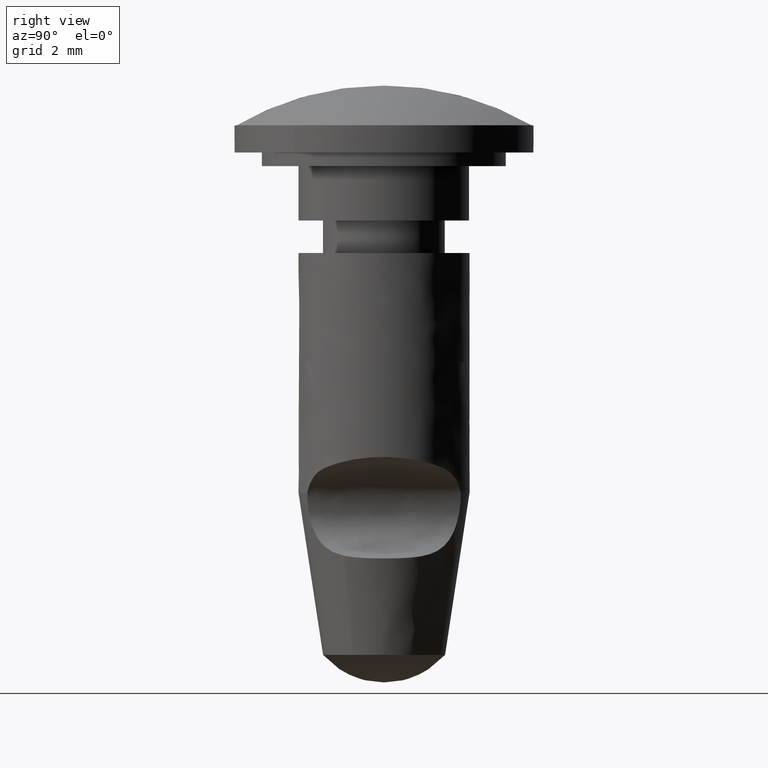
[diagram: clean part render]
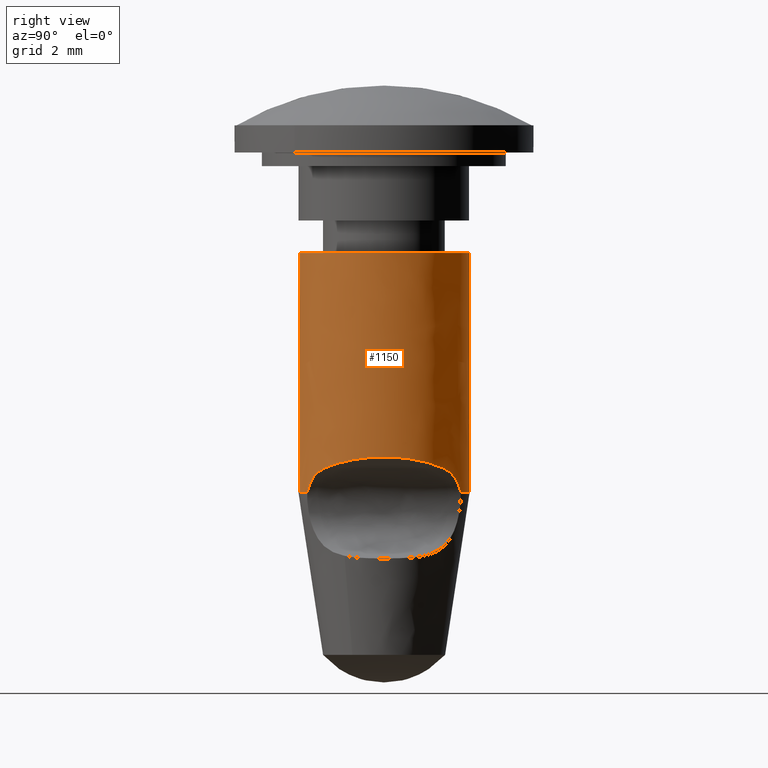
[diagram: same view with one face highlighted and labeled with its STEP entity id]
A machine part, right view. The second image highlights one B-rep face of the part: STEP entity #1150.
In plain terms, the highlighted face is a freeform B-spline surface patch.
Its self-contained STEP definition (entity closure, byte-faithful):
#107=CARTESIAN_POINT('',(1.395411921601278,-2.824061891859485,7.0));
#108=VERTEX_POINT('',#107);
#144=CARTESIAN_POINT('',(0.519899958460847,-3.106799644842327,7.000000000000001));
#145=VERTEX_POINT('',#144);
#146=CARTESIAN_POINT('',(1.395411921601283,-2.824061891859492,7.0));
#147=CARTESIAN_POINT('',(0.978524770270523,-3.030052172244709,7.000000000000001));
#148=CARTESIAN_POINT('',(0.519899958460847,-3.106799644842327,7.000000000000001));
#156=(BOUNDED_CURVE()B_SPLINE_CURVE(2,(#146,#147,#148),.UNSPECIFIED.,.F.,.U.)B_SPLINE_CURVE_WITH_KNOTS((3,3),(0.0,0.322129130754565),.UNSPECIFIED.)CURVE()GEOMETRIC_REPRESENTATION_ITEM()RATIONAL_B_SPLINE_CURVE((1.0,0.966668520807908,0.954811122453641))REPRESENTATION_ITEM(''));
#157=EDGE_CURVE('',#108,#145,#156,.T.);
#282=CARTESIAN_POINT('',(-1.395411921601278,2.824061891859485,7.0));
#283=VERTEX_POINT('',#282);
#317=CARTESIAN_POINT('',(1.395411921601278,2.824061891859485,7.0));
#318=VERTEX_POINT('',#317);
#319=CARTESIAN_POINT('',(-1.395411921601282,2.824061891859493,7.0));
#320=CARTESIAN_POINT('',(2.168404E-016,3.513556140041452,7.000000000000001));
#321=CARTESIAN_POINT('',(1.395411921601282,2.824061891859493,7.0));
#329=(BOUNDED_CURVE()B_SPLINE_CURVE(2,(#319,#320,#321),.UNSPECIFIED.,.F.,.U.)CURVE()GEOMETRIC_REPRESENTATION_ITEM()QUASI_UNIFORM_CURVE()RATIONAL_B_SPLINE_CURVE((1.0,0.896527584717299,1.0))REPRESENTATION_ITEM(''));
#330=EDGE_CURVE('',#283,#318,#329,.T.);
#975=CARTESIAN_POINT('',(-2.816922779311295,-1.409768085678324,16.020000000000003));
#976=CARTESIAN_POINT('',(-3.028699698685160,-0.986606833570979,16.020000000000003));
#977=CARTESIAN_POINT('',(-3.106799644842278,-0.519899958461135,16.020000000000000));
#978=CARTESIAN_POINT('',(-3.626699603303413,2.586899686381144,16.019999999999996));
#979=CARTESIAN_POINT('',(-0.519899958461135,3.106799644842278,16.020000000000000));
#980=CARTESIAN_POINT('',(2.586899686381144,3.626699603303413,16.019999999999996));
#981=CARTESIAN_POINT('',(3.106799644842278,0.519899958461135,16.020000000000000));
#982=CARTESIAN_POINT('',(3.626699603303413,-2.586899686381144,16.019999999999996));
#983=CARTESIAN_POINT('',(0.519899958461135,-3.106799644842278,16.020000000000000));
#984=CARTESIAN_POINT('',(-2.816922779311295,-1.409768085678324,6.774500000000000));
#985=CARTESIAN_POINT('',(-3.028699698685160,-0.986606833570979,6.774500000000000));
#986=CARTESIAN_POINT('',(-3.106799644842278,-0.519899958461135,6.774500000000000));
#987=CARTESIAN_POINT('',(-3.626699603303413,2.586899686381144,6.774500000000000));
#988=CARTESIAN_POINT('',(-0.519899958461135,3.106799644842278,6.774500000000000));
#989=CARTESIAN_POINT('',(2.586899686381144,3.626699603303413,6.774500000000000));
#990=CARTESIAN_POINT('',(3.106799644842278,0.519899958461135,6.774500000000000));
#991=CARTESIAN_POINT('',(3.626699603303413,-2.586899686381144,6.774500000000000));
#992=CARTESIAN_POINT('',(0.519899958461135,-3.106799644842278,6.774500000000000));
#1000=(BOUNDED_SURFACE()B_SPLINE_SURFACE(2,1,((#975,#984),(#976,#985),(#977,#986),(#978,#987),(#979,#988),(#980,#989),(#981,#990),(#982,#991),(#983,#992)),.UNSPECIFIED.,.F.,.F.,.U.)B_SPLINE_SURFACE_WITH_KNOTS((3,2,2,2,3),(2,2),(0.0,1.043818177180199,6.262909063081196,11.481999948982191,16.701090834883189),(0.0,9.245500000000003),.UNSPECIFIED.)GEOMETRIC_REPRESENTATION_ITEM()RATIONAL_B_SPLINE_SURFACE(((0.906274169979695,0.906274169979695),(0.941421356237309,0.941421356237309),(1.0,1.0),(0.707106781186548,0.707106781186548),(1.0,1.0),(0.707106781186548,0.707106781186548),(1.0,1.0),(0.707106781186548,0.707106781186548),(1.0,1.0)))REPRESENTATION_ITEM('')SURFACE());
#1001=CARTESIAN_POINT('',(-2.816922847399866,-1.409767949627387,15.800000000000001));
#1002=VERTEX_POINT('',#1001);
#1003=CARTESIAN_POINT('',(-3.150000000000000,0.0,15.800000000000001));
#1004=VERTEX_POINT('',#1003);
#1005=CARTESIAN_POINT('',(-2.816922847399866,-1.409767949627386,15.800000000000002));
#1006=CARTESIAN_POINT('',(-3.150000000000000,-0.744230933709373,15.800000000000004));
#1007=CARTESIAN_POINT('',(-3.150000000000000,0.0,15.800000000000001));
#1015=(BOUNDED_CURVE()B_SPLINE_CURVE(2,(#1005,#1006,#1007),.UNSPECIFIED.,.F.,.U.)B_SPLINE_CURVE_WITH_KNOTS((3,3),(0.923914174302995,1.0),.UNSPECIFIED.)CURVE()GEOMETRIC_REPRESENTATION_ITEM()RATIONAL_B_SPLINE_CURVE((0.875978199390116,0.910859910422100,1.0))REPRESENTATION_ITEM(''));
#1016=EDGE_CURVE('',#1002,#1004,#1015,.T.);
#1017=ORIENTED_EDGE('',*,*,#1016,.T.);
#1018=CARTESIAN_POINT('',(3.150000000000000,0.0,15.800000000000001));
#1019=VERTEX_POINT('',#1018);
#1020=CARTESIAN_POINT('',(-3.150000000000000,0.0,15.800000000000001));
#1021=CARTESIAN_POINT('',(-3.149999999999999,3.149999999999999,15.799999999999997));
#1022=CARTESIAN_POINT('',(0.0,3.150000000000000,15.800000000000001));
#1023=CARTESIAN_POINT('',(3.149999999999999,3.149999999999999,15.799999999999997));
#1024=CARTESIAN_POINT('',(3.150000000000000,0.0,15.800000000000001));
#1032=(BOUNDED_CURVE()B_SPLINE_CURVE(2,(#1020,#1021,#1022,#1023,#1024),.UNSPECIFIED.,.F.,.U.)B_SPLINE_CURVE_WITH_KNOTS((3,2,3),(0.0,0.250000000000000,0.500000000000000),.UNSPECIFIED.)CURVE()GEOMETRIC_REPRESENTATION_ITEM()RATIONAL_B_SPLINE_CURVE((1.0,0.707106781186548,1.0,0.707106781186548,1.0))REPRESENTATION_ITEM(''));
#1033=EDGE_CURVE('',#1004,#1019,#1032,.T.);
#1034=ORIENTED_EDGE('',*,*,#1033,.T.);
#1035=CARTESIAN_POINT('',(0.519895864489646,-3.106800329932603,15.800000000000001));
#1036=VERTEX_POINT('',#1035);
#1037=CARTESIAN_POINT('',(3.150000000000000,0.0,15.800000000000001));
#1038=CARTESIAN_POINT('',(3.149999999999999,-2.666675404604687,15.799999999999997));
#1039=CARTESIAN_POINT('',(0.519895864489646,-3.106800329932603,15.799999999999997));
#1047=(BOUNDED_CURVE()B_SPLINE_CURVE(2,(#1037,#1038,#1039),.UNSPECIFIED.,.F.,.U.)B_SPLINE_CURVE_WITH_KNOTS((3,3),(0.500000000000000,0.721599700964532),.UNSPECIFIED.)CURVE()GEOMETRIC_REPRESENTATION_ITEM()RATIONAL_B_SPLINE_CURVE((1.0,0.740379801185598,0.941013669744188))REPRESENTATION_ITEM(''));
#1048=EDGE_CURVE('',#1019,#1036,#1047,.T.);
#1049=ORIENTED_EDGE('',*,*,#1048,.T.);
#1050=CARTESIAN_POINT('',(0.519895864489646,-3.106800329932603,15.800000000000001));
#1051=CARTESIAN_POINT('',(0.519899958460847,-3.106799644842327,7.000000000000001));
#1052=QUASI_UNIFORM_CURVE('',1,(#1050,#1051),.UNSPECIFIED.,.F.,.U.);
#1053=EDGE_CURVE('',#1036,#145,#1052,.T.);
#1054=ORIENTED_EDGE('',*,*,#1053,.T.);
#1055=ORIENTED_EDGE('',*,*,#157,.F.);
#1056=CARTESIAN_POINT('',(2.261600000000000,-2.192638921482470,7.886915730406150));
#1057=VERTEX_POINT('',#1056);
#1058=CARTESIAN_POINT('',(1.395411921601283,-2.824061891859492,7.0));
#1059=CARTESIAN_POINT('',(1.442245490071752,-2.800920713557698,7.107310059800901));
#1060=CARTESIAN_POINT('',(1.498825769357962,-2.771586008130065,7.207788326955225));
#1061=CARTESIAN_POINT('',(1.580509040153897,-2.724856951190544,7.324848275187132));
#1062=CARTESIAN_POINT('',(1.597437868450000,-2.714976246624375,7.347876988765169));
#1063=CARTESIAN_POINT('',(1.631944147010139,-2.694376006486848,7.392521586775000));
#1064=CARTESIAN_POINT('',(1.684798801201478,-2.662149672739891,7.457558262311603));
#1065=CARTESIAN_POINT('',(1.740636826665068,-2.625802477903604,7.517004376398355));
#1066=CARTESIAN_POINT('',(1.817261514989686,-2.573366627871890,7.591557862687643));
#1067=CARTESIAN_POINT('',(1.856661941702179,-2.545162179890284,7.626479509217526));
#1068=CARTESIAN_POINT('',(1.937197344489610,-2.484413519567862,7.691801650191316));
#1069=CARTESIAN_POINT('',(1.978152848314294,-2.451984738187228,7.722028889604045));
#1070=CARTESIAN_POINT('',(2.100394444043118,-2.349917992148015,7.804706778211815));
#1071=CARTESIAN_POINT('',(2.181811029433209,-2.274937349219895,7.849823379163370));
#1072=CARTESIAN_POINT('',(2.261600000000000,-2.192638921482485,7.886915730406150));
#1073=B_SPLINE_CURVE_WITH_KNOTS('',3,(#1058,#1059,#1060,#1061,#1062,#1063,#1064,#1065,#1066,#1067,#1068,#1069,#1070,#1071,#1072),.UNSPECIFIED.,.F.,.U.,(4,2,2,1,2,2,2,4),(0.0,0.249999999999998,0.312499999999999,0.374999999999999,0.499999999999999,0.624999999999999,0.749999999999999,1.0),.UNSPECIFIED.);
#1074=EDGE_CURVE('',#108,#1057,#1073,.T.);
#1075=ORIENTED_EDGE('',*,*,#1074,.T.);
#1076=CARTESIAN_POINT('',(2.261600000000000,2.192638921482470,7.886915730406150));
#1077=VERTEX_POINT('',#1076);
#1078=CARTESIAN_POINT('',(2.261600000000000,2.192638921482470,7.886915730406150));
#1079=CARTESIAN_POINT('',(4.387380615493393,3.426079E-014,8.875150077770856));
#1080=CARTESIAN_POINT('',(2.261600000000000,-2.192638921482470,7.886915730406150));
#1088=(BOUNDED_CURVE()B_SPLINE_CURVE(2,(#1078,#1079,#1080),.UNSPECIFIED.,.F.,.U.)CURVE()GEOMETRIC_REPRESENTATION_ITEM()QUASI_UNIFORM_CURVE()RATIONAL_B_SPLINE_CURVE((1.0,0.717968253968262,1.0))REPRESENTATION_ITEM(''));
#1089=EDGE_CURVE('',#1077,#1057,#1088,.T.);
#1090=ORIENTED_EDGE('',*,*,#1089,.F.);
#1091=CARTESIAN_POINT('',(2.261600000000000,2.192638921482485,7.886915730406150));
#1092=CARTESIAN_POINT('',(2.181727650848084,2.275023350159799,7.849784618069656));
#1093=CARTESIAN_POINT('',(2.100408922000638,2.349887594555652,7.804690353958636));
#1094=CARTESIAN_POINT('',(1.978626519031077,2.451598342888487,7.722362286660981));
#1095=CARTESIAN_POINT('',(1.938067407175009,2.483735843393476,7.692465605068003));
#1096=CARTESIAN_POINT('',(1.877622659090662,2.529361659331698,7.643500943431153));
#1097=CARTESIAN_POINT('',(1.857483803082899,2.544179472387632,7.626438538702961));
#1098=CARTESIAN_POINT('',(1.817851821335379,2.572646501581896,7.591263539115191));
#1099=CARTESIAN_POINT('',(1.798323154777140,2.586324817863928,7.573126692053708));
#1100=CARTESIAN_POINT('',(1.702242017268510,2.652083677931281,7.479666194027125));
#1101=CARTESIAN_POINT('',(1.630346235803604,2.696313659460141,7.396065367631473));
#1102=CARTESIAN_POINT('',(1.532619910273796,2.752269111175343,7.256318367302801));
#1103=CARTESIAN_POINT('',(1.501566851286458,2.769265477324535,7.206991115769558));
#1104=CARTESIAN_POINT('',(1.444713232799247,2.799345989290812,7.105663975962181));
#1105=CARTESIAN_POINT('',(1.418781409193626,2.812514672699010,7.053546658795219));
#1106=CARTESIAN_POINT('',(1.395411921601282,2.824061891859493,7.0));
#1107=B_SPLINE_CURVE_WITH_KNOTS('',3,(#1091,#1092,#1093,#1094,#1095,#1096,#1097,#1098,#1099,#1100,#1101,#1102,#1103,#1104,#1105,#1106),.UNSPECIFIED.,.F.,.U.,(4,2,2,2,2,2,2,4),(0.0,0.250000000000000,0.375000000000000,0.437500000000000,0.500000000000000,0.750000000000000,0.875000000000000,1.0),.UNSPECIFIED.);
#1108=EDGE_CURVE('',#1077,#318,#1107,.T.);
#1109=ORIENTED_EDGE('',*,*,#1108,.T.);
#1110=ORIENTED_EDGE('',*,*,#330,.F.);
#1111=CARTESIAN_POINT('',(-2.261600000000000,2.192638921482485,7.886915730406150));
#1112=VERTEX_POINT('',#1111);
#1113=CARTESIAN_POINT('',(-1.395411921601278,2.824061891859485,7.0));
#1114=CARTESIAN_POINT('',(-1.442728492512568,2.800682054707464,7.108416766432518));
#1115=CARTESIAN_POINT('',(-1.499501959837492,2.771200471897395,7.208765514671108));
#1116=CARTESIAN_POINT('',(-1.596569515400678,2.715668486440024,7.347860399104665));
#1117=CARTESIAN_POINT('',(-1.630923356606059,2.695257126343957,7.392306711724536));
#1118=CARTESIAN_POINT('',(-1.703356120022317,2.650075451871810,7.477336776508384));
#1119=CARTESIAN_POINT('',(-1.740835537687784,2.625671194934574,7.517210623979172));
#1120=CARTESIAN_POINT('',(-1.855829369171590,2.546964413819644,7.629057283411480));
#1121=CARTESIAN_POINT('',(-1.936074708661463,2.487069352751405,7.693499273039049));
#1122=CARTESIAN_POINT('',(-2.100033168945808,2.350268055401615,7.804531851072253));
#1123=CARTESIAN_POINT('',(-2.181849489830042,2.274897679198248,7.849841258658969));
#1124=CARTESIAN_POINT('',(-2.261600000000000,2.192638921482485,7.886915730406150));
#1125=B_SPLINE_CURVE_WITH_KNOTS('',3,(#1113,#1114,#1115,#1116,#1117,#1118,#1119,#1120,#1121,#1122,#1123,#1124),.UNSPECIFIED.,.F.,.U.,(4,2,2,2,2,4),(0.0,0.250000000000001,0.375000000000001,0.500000000000000,0.750000000000000,1.0),.UNSPECIFIED.);
#1126=EDGE_CURVE('',#283,#1112,#1125,.T.);
#1127=ORIENTED_EDGE('',*,*,#1126,.T.);
#1128=CARTESIAN_POINT('',(-2.816922779318737,-1.409768085663437,8.145074564112427));
#1129=VERTEX_POINT('',#1128);
#1130=CARTESIAN_POINT('',(-2.816922779318738,-1.409768085663437,8.145074564112427));
#1131=CARTESIAN_POINT('',(-3.816929799250161,0.588392166797534,8.609958511912614));
#1132=CARTESIAN_POINT('',(-2.261600000000000,2.192638921482485,7.886915730406150));
#1140=(BOUNDED_CURVE()B_SPLINE_CURVE(2,(#1130,#1131,#1132),.UNSPECIFIED.,.F.,.U.)B_SPLINE_CURVE_WITH_KNOTS((3,3),(0.208441417067243,1.0),.UNSPECIFIED.)CURVE()GEOMETRIC_REPRESENTATION_ITEM()RATIONAL_B_SPLINE_CURVE((0.906933137923249,0.776755350769065,1.0))REPRESENTATION_ITEM(''));
#1141=EDGE_CURVE('',#1129,#1112,#1140,.T.);
#1142=ORIENTED_EDGE('',*,*,#1141,.F.);
#1143=CARTESIAN_POINT('',(-2.816922847399866,-1.409767949627387,15.800000000000001));
#1144=CARTESIAN_POINT('',(-2.816922779318737,-1.409768085663437,8.145074564112427));
#1145=QUASI_UNIFORM_CURVE('',1,(#1143,#1144),.UNSPECIFIED.,.F.,.U.);
#1146=EDGE_CURVE('',#1002,#1129,#1145,.T.);
#1147=ORIENTED_EDGE('',*,*,#1146,.F.);
#1148=EDGE_LOOP('',(#1017,#1034,#1049,#1054,#1055,#1075,#1090,#1109,#1110,#1127,#1142,#1147));
#1149=FACE_OUTER_BOUND('',#1148,.T.);
#1150=ADVANCED_FACE('',(#1149),#1000,.T.);